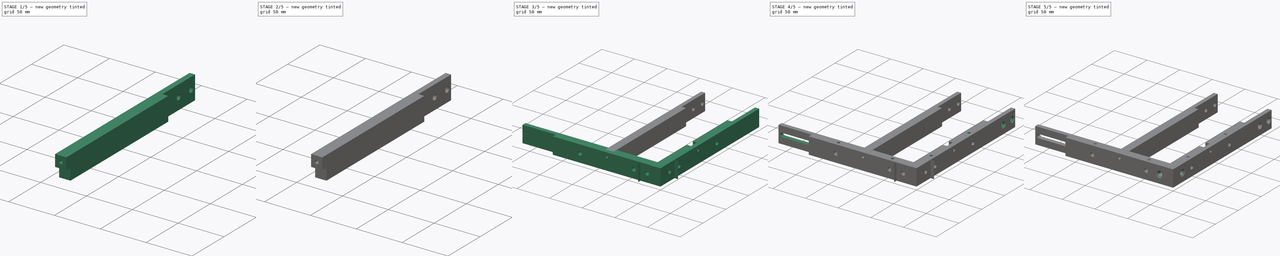
[diagram: build sequence overview — one tinted view per stage of 5, left to right]
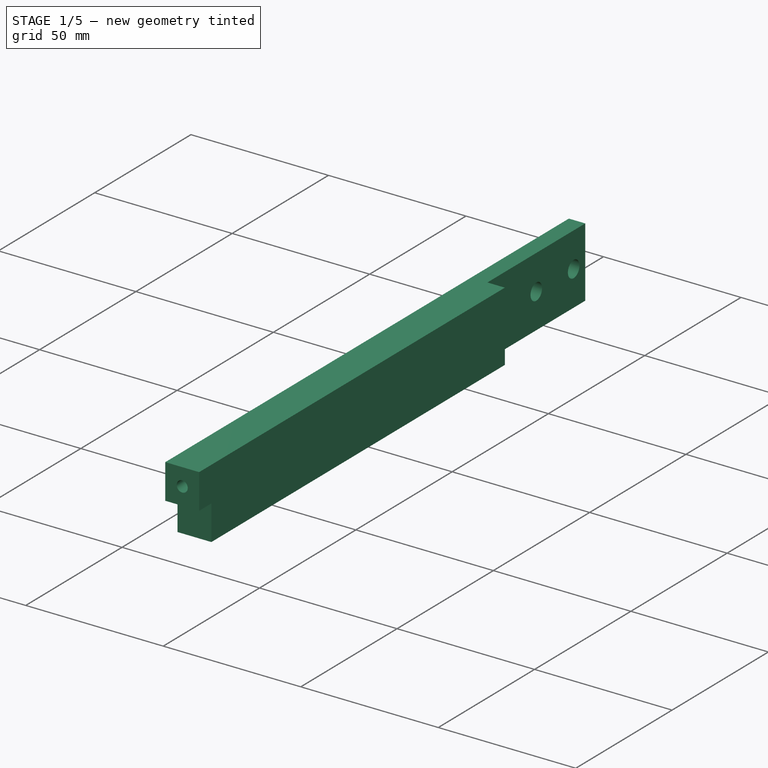
[diagram: stage 1 of 5 — iso view after this stage's code; geometry added in this stage tinted green]
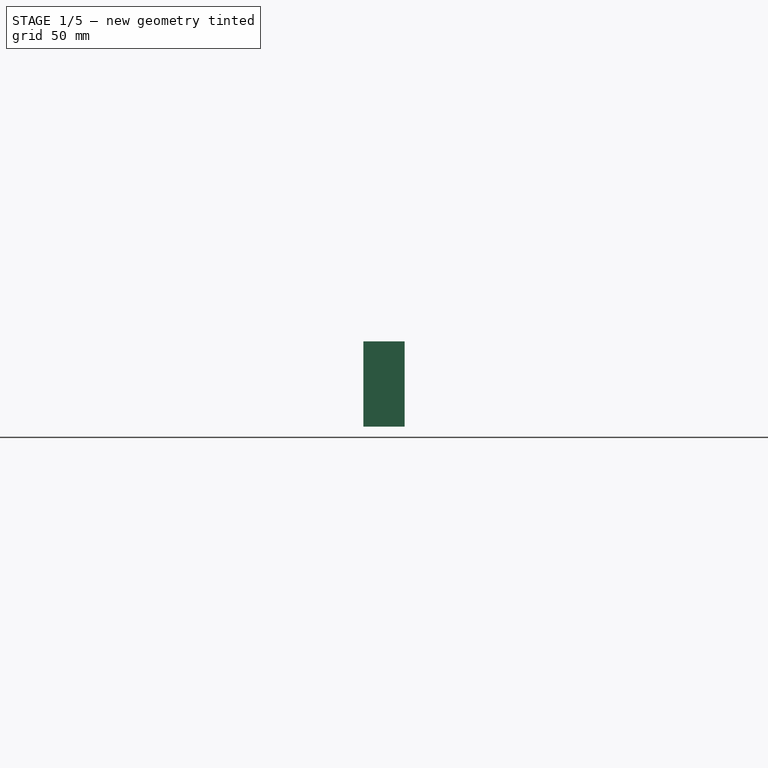
[diagram: stage 1 of 5 — front view after this stage's code; geometry added in this stage tinted green]
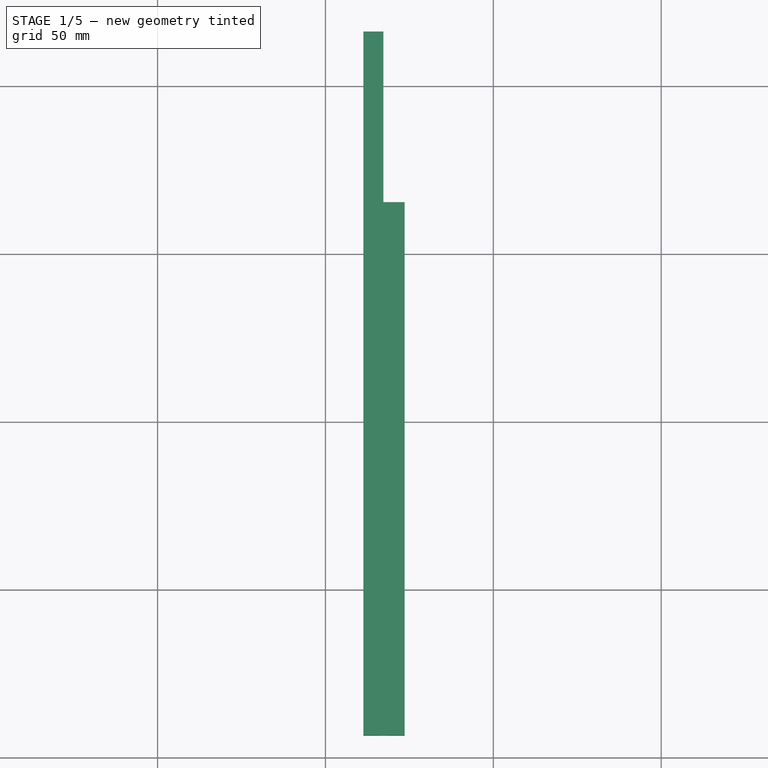
[diagram: stage 1 of 5 — top view after this stage's code; geometry added in this stage tinted green]
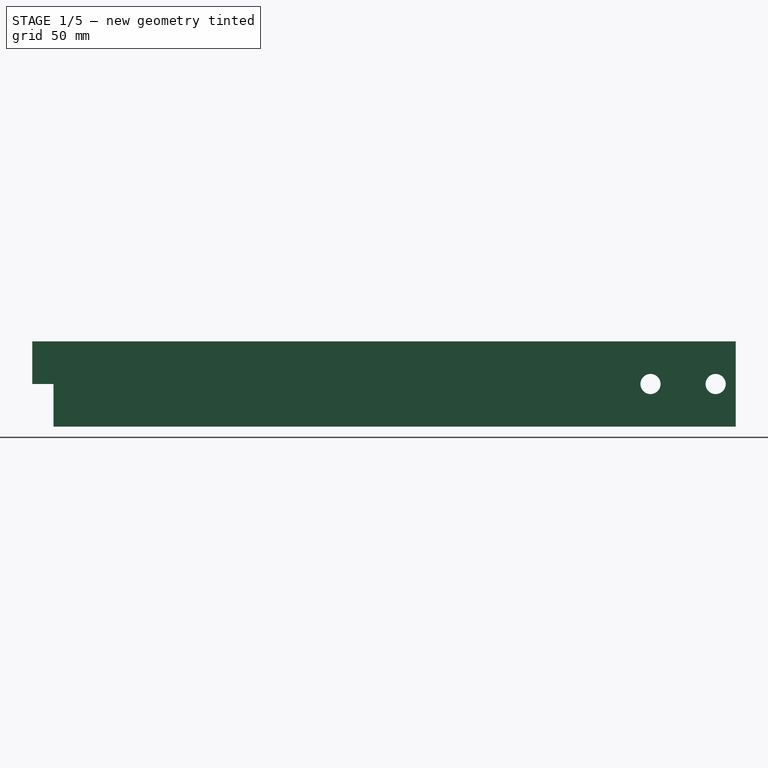
[diagram: stage 1 of 5 — right view after this stage's code; geometry added in this stage tinted green]
FCSTD DOCUMENT  (FreeCAD 0.21R33771 (Git))
Label: Battery_Shelf_Parts
License: All rights reserved
LicenseURL: http://en.wikipedia.org/wiki/All_rights_reserved
objects: Sketcher::SketchObject×19, PartDesign::Pocket×15, Part::FeaturePython×5, PartDesign::Pad×4, PartDesign::Chamfer×4, PartDesign::Body×4, App::Part×3, Spreadsheet::Sheet×1, App::DocumentObjectGroup×1
note: 74 computed .brp shape members not serialized (recipe doc carries the construction recipe); baked Part::Feature solids carry a one-line shape summary decoded from their .brp

FEATURE [PartDesign::Body] Body002  label="Shelf_Runner_Long_Pocket_Body"
  Group = -> [Sketch009,Pad002,Sketch010,Pocket007,Sketch011,Pocket008,Sketch012,Pocket009,Sketch013,Pocket010]
  Origin = -> Origin004
  Tip = -> Pocket010
FEATURE [App::Part] Part001  label="Shelf_Runner_Long_Pocket_Part"
  Group = -> [Body002]
  Origin = -> Origin003
FEATURE [Sketcher::SketchObject] Sketch014
  FullyConstrained = true
  MapMode = 5
  Support = -> [XY_Plane006]
  expr: Constraints[10] = <<p>>.thickness / 2
  expr: Constraints[11] = <<p>>.batt_length / 4 - <<p>>.thickness / 2 + <<p>>.clearance
  expr: Constraints[8] = <<p>>.thickness - <<p>>.clearance * 2
  expr: Constraints[9] = <<p>>.batt_length / 2 + <<p>>.overlap / 2 - <<p>>.thickness / 2
  sketch-geometry (4):
    g0: LineSegment StartX=-88.7 StartY=6.35 StartZ=0 EndX=-76.4 EndY=6.35 EndZ=0
    g1: LineSegment StartX=-76.4 StartY=6.35 StartZ=0 EndX=-76.4 EndY=215.9 EndZ=0
    g2: LineSegment StartX=-76.4 StartY=215.9 StartZ=0 EndX=-88.7 EndY=215.9 EndZ=0
    g3: LineSegment StartX=-88.7 StartY=215.9 StartZ=0 EndX=-88.7 EndY=6.35 EndZ=0
  constraints (12):
    c: Coincident(g0,g1)
    c: Coincident(g1,g2)
    c: Coincident(g2,g3)
    c: Coincident(g3,g0)
    c: Horizontal(g0)
    c: Horizontal(g2)
    c: Vertical(g1)
    c: Vertical(g3)
    c: DistanceX(g0,g0) = 12.3
    c: DistanceY(g1,g1) = 209.55
    c: DistanceY(g-1,g0) = 6.35
    c: DistanceX(g0,g-1) = 76.4
FEATURE [PartDesign::Pad] Pad003  label="Shelf_Runner_Pad001"
  Direction = (0,0,1)
  Length = 25.4
  Length2 = 10
  Profile = -> Sketch014
  ReferenceAxis = -> Sketch014 [N_Axis]
  Type = 0
  expr: Length = <<p>>.height
FEATURE [Sketcher::SketchObject] Sketch015
  FullyConstrained = true
  MapMode = 5
  Placement = pos=(0,0,0) rot=(1,0,0;3.14159rad)
  Support = -> [Pad003]
  expr: Constraints[10] = <<p>>.thickness / 2
  expr: Constraints[11] = <<p>>.batt_length / 4 - <<p>>.thickness / 2 + <<p>>.clearance
  expr: Constraints[8] = <<p>>.thickness - <<p>>.clearance * 2
  expr: Constraints[9] = <<p>>.thickness / 2
  sketch-geometry (4):
    g0: LineSegment StartX=-88.7 StartY=-6.35 StartZ=0 EndX=-76.4 EndY=-6.35 EndZ=0
    g1: LineSegment StartX=-76.4 StartY=-6.35 StartZ=0 EndX=-76.4 EndY=-12.7 EndZ=0
    g2: LineSegment StartX=-76.4 StartY=-12.7 StartZ=0 EndX=-88.7 EndY=-12.7 EndZ=0
    g3: LineSegment StartX=-88.7 StartY=-12.7 StartZ=0 EndX=-88.7 EndY=-6.35 EndZ=0
  constraints (12):
    c: Coincident(g0,g1)
    c: Coincident(g1,g2)
    c: Coincident(g2,g3)
    c: Coincident(g3,g0)
    c: Horizontal(g0)
    c: Horizontal(g2)
    c: Vertical(g1)
    c: Vertical(g3)
    c: DistanceX(g0,g0) = 12.3
    c: DistanceY(g1,g1) = 6.35
    c: DistanceY(g0,g-1) = 6.35
    c: DistanceX(g0,g-1) = 76.4
FEATURE [PartDesign::Pocket] Pocket011  label="LowerPocketCutout001"
  BaseFeature = -> Pad003
  Direction = (0,0,1)
  Length = 12.7
  Length2 = 5
  Profile = -> Sketch015
  ReferenceAxis = -> Sketch015 [N_Axis]
  Type = 0
  expr: Length = <<p>>.height / 2
FEATURE [Sketcher::SketchObject] Sketch016
  FullyConstrained = true
  MapMode = 5
  Placement = pos=(0,6.35,0) rot=(1,0,0;1.5708rad)
  Support = -> [Pocket011]
  expr: Constraints[0] = 4
  expr: Constraints[1] = <<p>>.height - <<p>>.height / 4
  expr: Constraints[2] = <<p>>.batt_length / 4
  sketch-geometry (1):
    g0: Circle CenterX=-82.55 CenterY=19.05 CenterZ=0 NormalX=0 NormalY=0 NormalZ=1 AngleXU=0 Radius=2
  constraints (3):
    c: Diameter(g0) = 4
    c: DistanceY(g-1,g0) = 19.05
    c: DistanceX(g0,g-1) = 82.55
FEATURE [PartDesign::Pocket] Pocket012
  BaseFeature = -> Pocket011
  Direction = (0,1,-2e-16)
  Length = 10
  Length2 = 5
  Profile = -> Sketch016
  ReferenceAxis = -> Sketch016 [N_Axis]
  Type = 0
FEATURE [Sketcher::SketchObject] Sketch017
  FullyConstrained = true
  MapMode = 5
  Placement = pos=(0,0,25.4) rot=(0,0,1;0rad)
  Support = -> [Pocket012]
  expr: Constraints[10] = <<p>>.batt_length / 2 + <<p>>.overlap / 2 - <<p>>.thickness / 2 + <<p>>.thickness / 2
  expr: Constraints[11] = <<p>>.batt_length / 4 - <<p>>.thickness / 2 + <<p>>.clearance
  expr: Constraints[8] = <<p>>.thickness / 2
  expr: Constraints[9] = <<p>>.overlap / 2
  sketch-geometry (4):
    g0: LineSegment StartX=-76.4 StartY=215.9 StartZ=0 EndX=-82.75 EndY=215.9 EndZ=0
    g1: LineSegment StartX=-82.75 StartY=215.9 StartZ=0 EndX=-82.75 EndY=165.1 EndZ=0
    g2: LineSegment StartX=-82.75 StartY=165.1 StartZ=0 EndX=-76.4 EndY=165.1 EndZ=0
    g3: LineSegment StartX=-76.4 StartY=165.1 StartZ=0 EndX=-76.4 EndY=215.9 EndZ=0
  constraints (12):
    c: Coincident(g0,g1)
    c: Coincident(g1,g2)
    c: Coincident(g2,g3)
    c: Coincident(g3,g0)
    c: Horizontal(g0)
    c: Horizontal(g2)
    c: Vertical(g1)
    c: Vertical(g3)
    c: DistanceX(g0,g0) = 6.35
    c: DistanceY(g3,g3) = 50.8
    c: DistanceY(g-1,g0) = 215.9
    c: DistanceX(g2,g-1) = 76.4
FEATURE [PartDesign::Pocket] Pocket013  label="Edge_Pocket001"
  BaseFeature = -> Pocket012
  Direction = (0,0,-1)
  Length = 5
  Length2 = 5
  Profile = -> Sketch017
  ReferenceAxis = -> Sketch017 [N_Axis]
  Type = 1
FEATURE [Sketcher::SketchObject] Sketch018
  FullyConstrained = true
  MapMode = 5
  Placement = pos=(-82.75,0,0) rot=(0.57735,0.57735,0.57735;2.0944rad)
  Support = -> [Pocket013]
  expr: Constraints[1] = <<p>>.hole_d
  expr: Constraints[3] = <<p>>.height / 2
  expr: Constraints[4] = (<<p>>.overlap / 2 - <<p>>.hole_d * 2) / 2
  expr: Constraints[5] = <<p>>.batt_length / 2 + <<p>>.overlap / 2 - <<p>>.hole_d
  sketch-geometry (2):
    g0: Circle CenterX=190.5 CenterY=12.7 CenterZ=0 NormalX=0 NormalY=0 NormalZ=1 AngleXU=0 Radius=3
    g1: Circle CenterX=209.9 CenterY=12.7 CenterZ=0 NormalX=0 NormalY=0 NormalZ=1 AngleXU=0 Radius=3
  constraints (6):
    c: Equal(g0,g1)
    c: Diameter(g0) = 6
    c: DistanceY(g0,g1) = 0
    c: DistanceY(g-1,g1) = 12.7
    c: DistanceX(g0,g1) = 19.4
    c: DistanceX(g-1,g1) = 209.9
FEATURE [PartDesign::Pocket] Pocket014  label="Short_Pocket001"
  BaseFeature = -> Pocket013
  Direction = (-1,0,0)
  Length = 5
  Length2 = 5
  Profile = -> Sketch018
  ReferenceAxis = -> Sketch018 [N_Axis]
  Type = 1
FEATURE [PartDesign::Chamfer] Chamfer003  label="Short_Pocket_Chamfer001"
  Angle = 45
  Base = -> Pocket014 [Edge14,Edge13]
  BaseFeature = -> Pocket014
  ChamferType = 0
  FlipDirection = false
  Size = 1.5
  Size2 = 1
  SupportTransform = false
  UseAllEdges = false
FEATURE [PartDesign::Body] Body003  label="Shelf_Runner_Short_Pocket_Body"
  Group = -> [Sketch014,Pad003,Sketch015,Pocket011,Sketch016,Pocket012,Sketch017,Pocket013,Sketch018,Pocket014,Chamfer003]
  Origin = -> Origin006
  Tip = -> Chamfer003
FEATURE [App::Part] Part002  label="Shelf_Runner_Short_Pocket_Part"
  Group = -> [Body003]
  Origin = -> Origin005
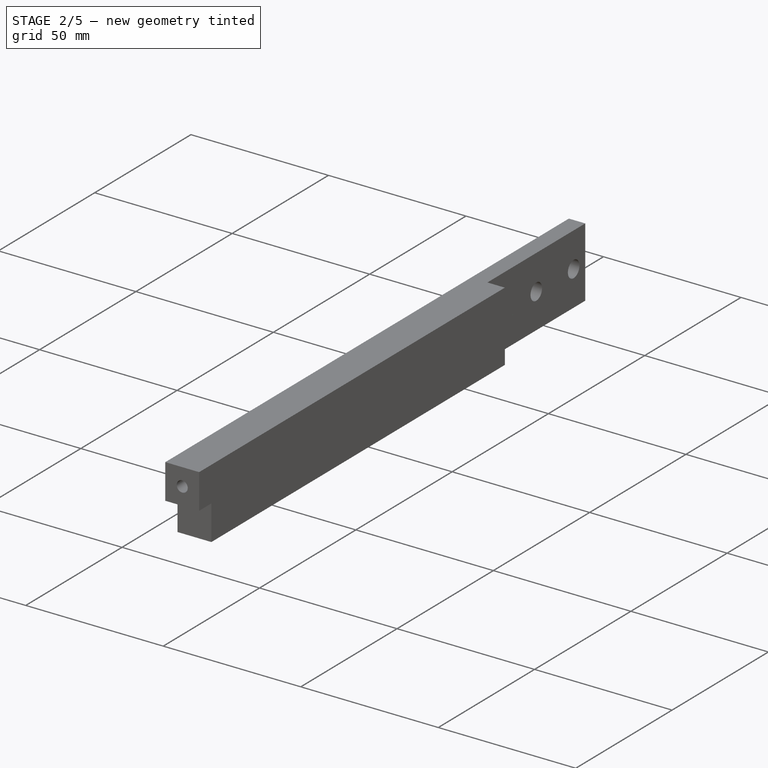
[diagram: stage 2 of 5 — iso view after this stage's code; geometry added in this stage tinted green]
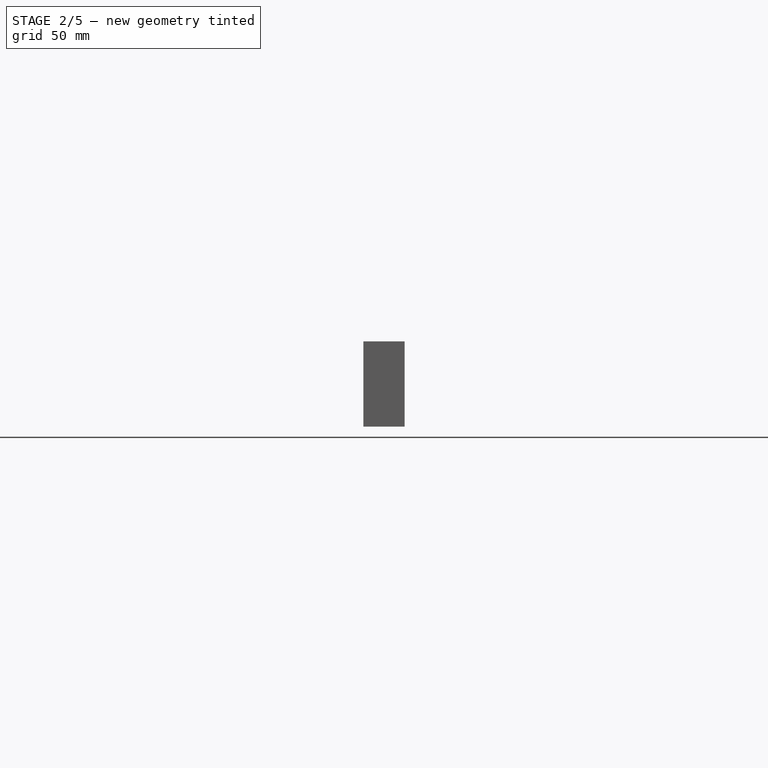
[diagram: stage 2 of 5 — front view after this stage's code; geometry added in this stage tinted green]
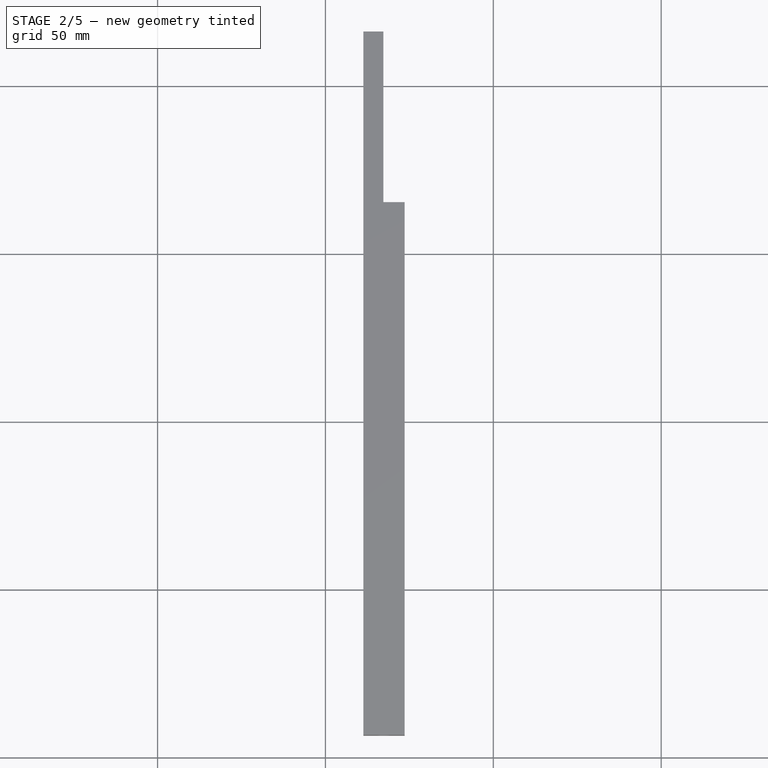
[diagram: stage 2 of 5 — top view after this stage's code; geometry added in this stage tinted green]
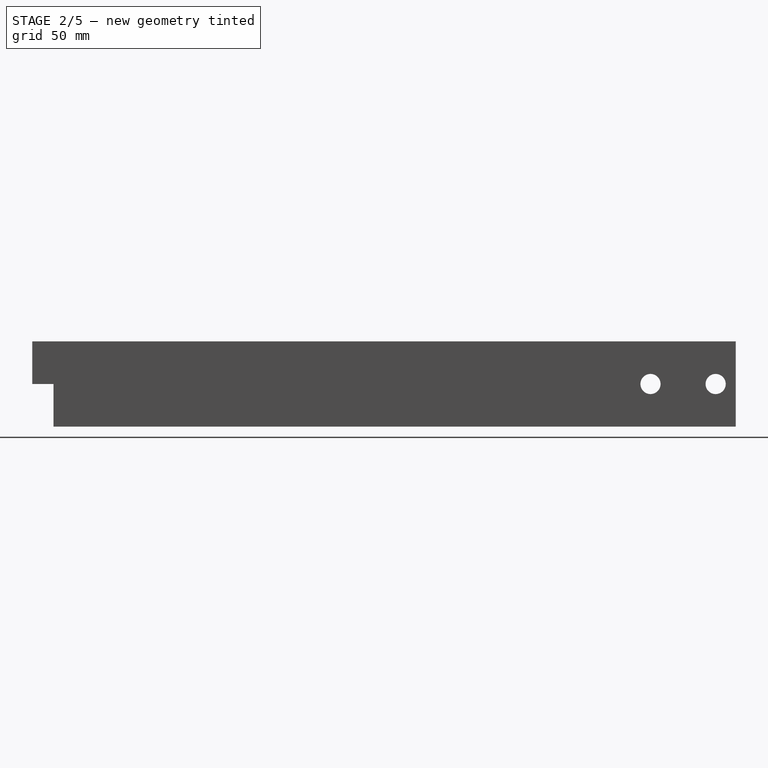
[diagram: stage 2 of 5 — right view after this stage's code; geometry added in this stage tinted green]
FEATURE [App::DocumentObjectGroup] GrExplode_Slice  label="Exploded Slice"
  Group = -> [Slice_child0,Slice_child1,Slice_child2,Slice_child3]
FEATURE [Sketcher::SketchObject] Sketch009
  FullyConstrained = true
  MapMode = 5
  Support = -> [XY_Plane004]
  expr: Constraints[10] = <<p>>.thickness / 2
  expr: Constraints[11] = <<p>>.batt_length / 4 - <<p>>.thickness / 2 + <<p>>.clearance
  expr: Constraints[8] = <<p>>.thickness - <<p>>.clearance * 2
  expr: Constraints[9] = <<p>>.batt_length / 2 + <<p>>.overlap / 2 - <<p>>.thickness / 2
  sketch-geometry (4):
    g0: LineSegment StartX=-88.7 StartY=6.35 StartZ=0 EndX=-76.4 EndY=6.35 EndZ=0
    g1: LineSegment StartX=-76.4 StartY=6.35 StartZ=0 EndX=-76.4 EndY=215.9 EndZ=0
    g2: LineSegment StartX=-76.4 StartY=215.9 StartZ=0 EndX=-88.7 EndY=215.9 EndZ=0
    g3: LineSegment StartX=-88.7 StartY=215.9 StartZ=0 EndX=-88.7 EndY=6.35 EndZ=0
  constraints (12):
    c: Coincident(g0,g1)
    c: Coincident(g1,g2)
    c: Coincident(g2,g3)
    c: Coincident(g3,g0)
    c: Horizontal(g0)
    c: Horizontal(g2)
    c: Vertical(g1)
    c: Vertical(g3)
    c: DistanceX(g0,g0) = 12.3
    c: DistanceY(g1,g1) = 209.55
    c: DistanceY(g-1,g0) = 6.35
    c: DistanceX(g0,g-1) = 76.4
FEATURE [PartDesign::Pad] Pad002  label="Shelf_Runner_Pad"
  Direction = (0,0,1)
  Length = 25.4
  Length2 = 10
  Profile = -> Sketch009
  ReferenceAxis = -> Sketch009 [N_Axis]
  Type = 0
  expr: Length = <<p>>.height
FEATURE [Sketcher::SketchObject] Sketch010
  FullyConstrained = true
  MapMode = 5
  Placement = pos=(0,0,0) rot=(1,0,0;3.14159rad)
  Support = -> [Pad002]
  expr: Constraints[10] = <<p>>.thickness / 2
  expr: Constraints[11] = <<p>>.batt_length / 4 - <<p>>.thickness / 2 + <<p>>.clearance
  expr: Constraints[8] = <<p>>.thickness - <<p>>.clearance * 2
  expr: Constraints[9] = <<p>>.thickness / 2
  sketch-geometry (4):
    g0: LineSegment StartX=-88.7 StartY=-6.35 StartZ=0 EndX=-76.4 EndY=-6.35 EndZ=0
    g1: LineSegment StartX=-76.4 StartY=-6.35 StartZ=0 EndX=-76.4 EndY=-12.7 EndZ=0
    g2: LineSegment StartX=-76.4 StartY=-12.7 StartZ=0 EndX=-88.7 EndY=-12.7 EndZ=0
    g3: LineSegment StartX=-88.7 StartY=-12.7 StartZ=0 EndX=-88.7 EndY=-6.35 EndZ=0
  constraints (12):
    c: Coincident(g0,g1)
    c: Coincident(g1,g2)
    c: Coincident(g2,g3)
    c: Coincident(g3,g0)
    c: Horizontal(g0)
    c: Horizontal(g2)
    c: Vertical(g1)
    c: Vertical(g3)
    c: DistanceX(g0,g0) = 12.3
    c: DistanceY(g1,g1) = 6.35
    c: DistanceY(g0,g-1) = 6.35
    c: DistanceX(g0,g-1) = 76.4
FEATURE [PartDesign::Pocket] Pocket007  label="LowerPocketCutout"
  BaseFeature = -> Pad002
  Direction = (0,0,1)
  Length = 12.7
  Length2 = 5
  Profile = -> Sketch010
  ReferenceAxis = -> Sketch010 [N_Axis]
  Type = 0
  expr: Length = <<p>>.height / 2
FEATURE [Sketcher::SketchObject] Sketch011
  FullyConstrained = true
  MapMode = 5
  Placement = pos=(0,6.35,0) rot=(1,0,0;1.5708rad)
  Support = -> [Pocket007]
  expr: Constraints[0] = 4
  expr: Constraints[1] = <<p>>.height - <<p>>.height / 4
  expr: Constraints[2] = <<p>>.batt_length / 4
  sketch-geometry (1):
    g0: Circle CenterX=-82.55 CenterY=19.05 CenterZ=0 NormalX=0 NormalY=0 NormalZ=1 AngleXU=0 Radius=2
  constraints (3):
    c: Diameter(g0) = 4
    c: DistanceY(g-1,g0) = 19.05
    c: DistanceX(g0,g-1) = 82.55
FEATURE [PartDesign::Pocket] Pocket008
  BaseFeature = -> Pocket007
  Direction = (0,1,-2e-16)
  Length = 10
  Length2 = 5
  Profile = -> Sketch011
  ReferenceAxis = -> Sketch011 [N_Axis]
  Type = 0
FEATURE [Sketcher::SketchObject] Sketch012
  FullyConstrained = true
  MapMode = 5
  Placement = pos=(0,0,25.4) rot=(0,0,1;0rad)
  Support = -> [Pocket008]
  expr: Constraints[10] = <<p>>.batt_length / 2 + <<p>>.overlap / 2 - <<p>>.thickness / 2 + <<p>>.thickness / 2
  expr: Constraints[11] = <<p>>.batt_length / 4 - <<p>>.thickness / 2 + <<p>>.clearance
  expr: Constraints[8] = <<p>>.thickness / 2
  expr: Constraints[9] = <<p>>.overlap / 2
  sketch-geometry (4):
    g0: LineSegment StartX=-76.4 StartY=215.9 StartZ=0 EndX=-82.75 EndY=215.9 EndZ=0
    g1: LineSegment StartX=-82.75 StartY=215.9 StartZ=0 EndX=-82.75 EndY=165.1 EndZ=0
    g2: LineSegment StartX=-82.75 StartY=165.1 StartZ=0 EndX=-76.4 EndY=165.1 EndZ=0
    g3: LineSegment StartX=-76.4 StartY=165.1 StartZ=0 EndX=-76.4 EndY=215.9 EndZ=0
  constraints (12):
    c: Coincident(g0,g1)
    c: Coincident(g1,g2)
    c: Coincident(g2,g3)
    c: Coincident(g3,g0)
    c: Horizontal(g0)
    c: Horizontal(g2)
    c: Vertical(g1)
    c: Vertical(g3)
    c: DistanceX(g0,g0) = 6.35
    c: DistanceY(g3,g3) = 50.8
    c: DistanceY(g-1,g0) = 215.9
    c: DistanceX(g2,g-1) = 76.4
FEATURE [PartDesign::Pocket] Pocket009  label="Edge_Pocket"
  BaseFeature = -> Pocket008
  Direction = (0,0,-1)
  Length = 5
  Length2 = 5
  Profile = -> Sketch012
  ReferenceAxis = -> Sketch012 [N_Axis]
  Type = 1
FEATURE [Sketcher::SketchObject] Sketch013
  FullyConstrained = true
  MapMode = 5
  Placement = pos=(-82.75,0,0) rot=(0.57735,0.57735,0.57735;2.0944rad)
  Support = -> [Pocket009]
  expr: Constraints[11] = <<p>>.height / 2
  expr: Constraints[12] = <<p>>.overlap / 2 - <<p>>.hole_d * 2
  expr: Constraints[13] = <<p>>.batt_length / 2 + <<p>>.overlap / 2 - <<p>>.hole_d
  expr: Constraints[6] = <<p>>.hole_d
  sketch-geometry (4):
    g0: LineSegment StartX=171.1 StartY=15.7 StartZ=0 EndX=209.9 EndY=15.7 EndZ=0
    g1: LineSegment StartX=209.9 StartY=9.7 StartZ=0 EndX=171.1 EndY=9.7 EndZ=0
    g2: ArcOfCircle CenterX=171.1 CenterY=12.7 CenterZ=0 NormalX=0 NormalY=0 NormalZ=1 AngleXU=0 Radius=3 StartAngle=1.5708 EndAngle=4.71239
    g3: ArcOfCircle CenterX=209.9 CenterY=12.7 CenterZ=0 NormalX=0 NormalY=0 NormalZ=1 AngleXU=0 Radius=3 StartAngle=4.71239 EndAngle=7.85398
  constraints (14):
    c: Horizontal(g0)
    c: Horizontal(g1)
    c: Coincident(g2,g0)
    c: Coincident(g2,g1)
    c: Coincident(g3,g0)
    c: DistanceX(g0,g1) = 0
    c: Diameter(g3) = 6
    c: DistanceX(g0,g3) = 0
    c: DistanceX(g0,g2) = 0
    c: DistanceX(g1,g2) = 0
    c: Coincident(g1,g3)
    c: DistanceY(g-1,g3) = 12.7
    c: DistanceX(g2,g3) = 38.8
    c: DistanceX(g-1,g3) = 209.9
FEATURE [PartDesign::Pocket] Pocket010  label="Long_Pocket001"
  BaseFeature = -> Pocket009
  Direction = (-1,0,0)
  Length = 5
  Length2 = 5
  Profile = -> Sketch013
  ReferenceAxis = -> Sketch013 [N_Axis]
  Type = 1
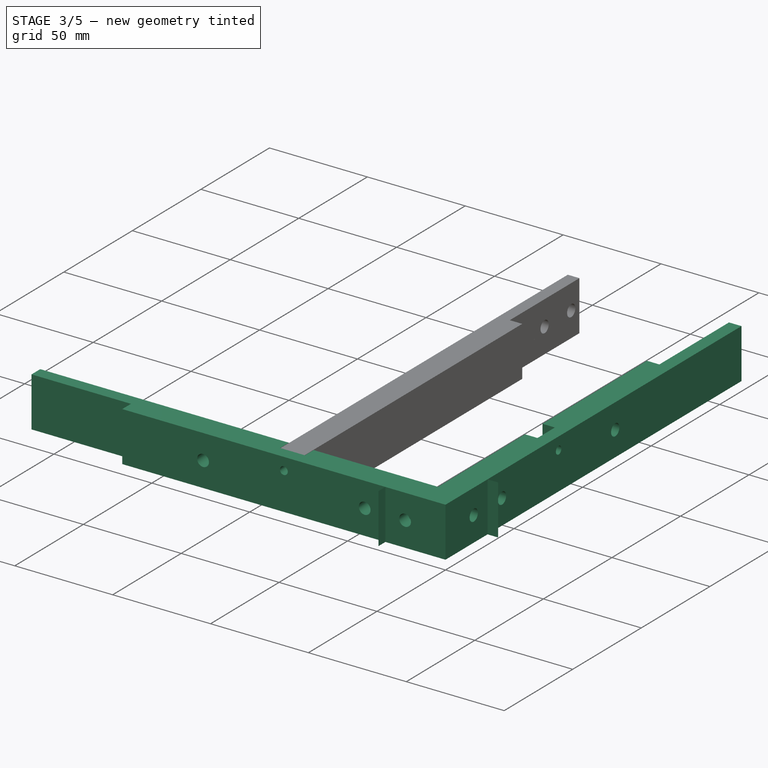
[diagram: stage 3 of 5 — iso view after this stage's code; geometry added in this stage tinted green]
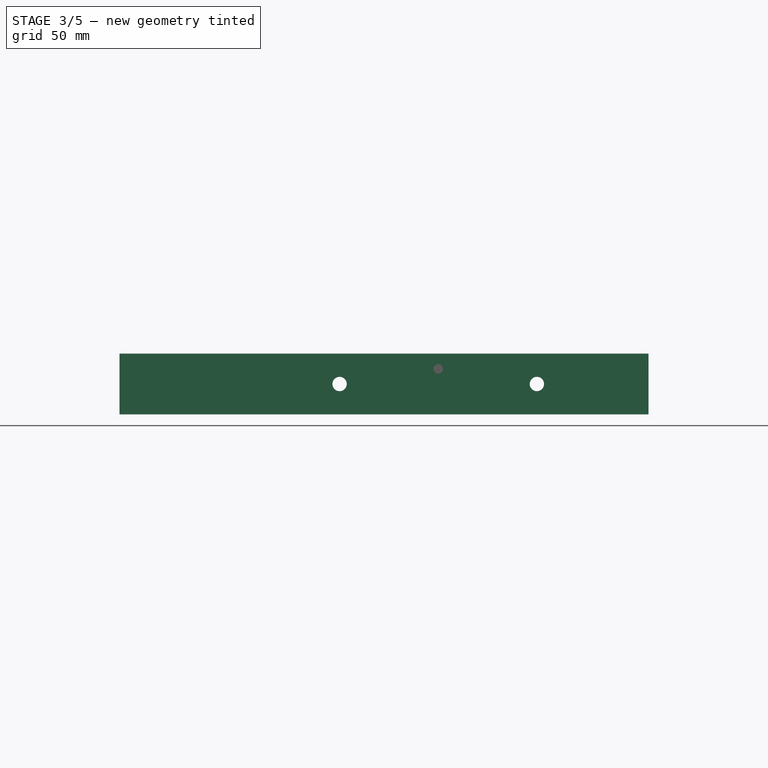
[diagram: stage 3 of 5 — front view after this stage's code; geometry added in this stage tinted green]
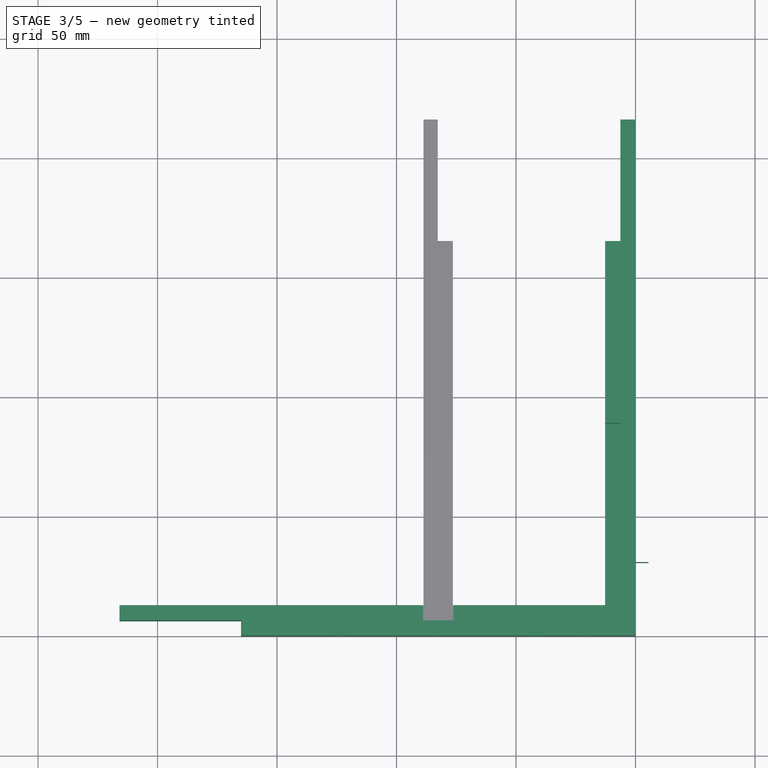
[diagram: stage 3 of 5 — top view after this stage's code; geometry added in this stage tinted green]
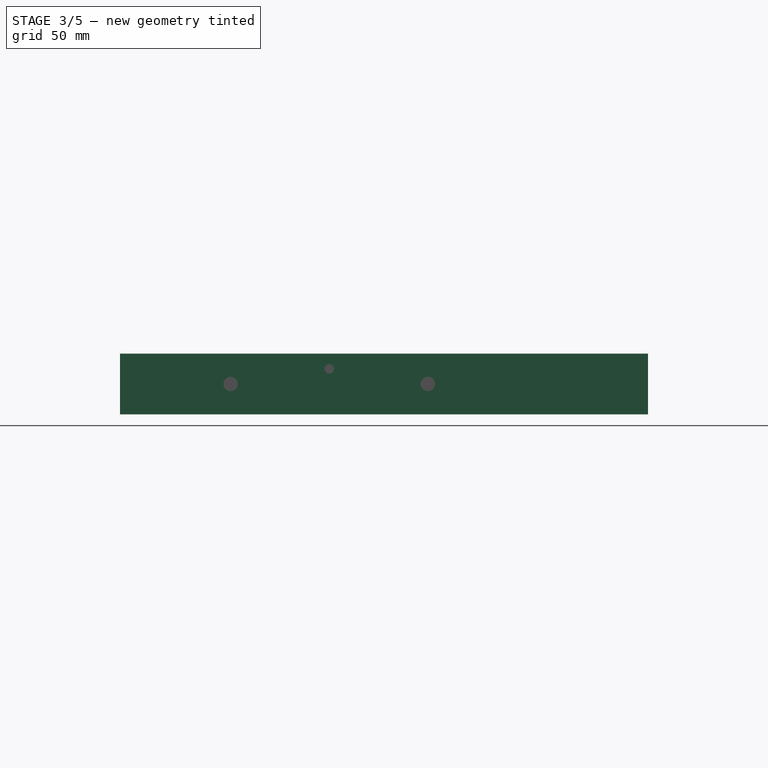
[diagram: stage 3 of 5 — right view after this stage's code; geometry added in this stage tinted green]
FEATURE [Spreadsheet::Sheet] Spreadsheet  label="p"
  cells = A1='batt_length; B1(batt_length)=330.2; A2='closet_width; B2(closet_width)=352.425; A3='overlap; B3(overlap)=101.6; A4='height; B4(height)=25.4; A5='thickness; B5(thickness)=12.7; A6='hole_d; B6(hole_d)=6; A8='clearance; B8(clearance)=0.2
FEATURE [Sketcher::SketchObject] Sketch
  FullyConstrained = true
  MapMode = 5
  Support = -> [XY_Plane001]
  expr: Constraints[13] = <<p>>.batt_length / 2 + <<p>>.overlap / 2
  expr: Constraints[14] = <<p>>.batt_length / 2 + <<p>>.overlap / 2
  expr: Constraints[15] = <<p>>.thickness
  expr: Constraints[16] = <<p>>.thickness
  sketch-geometry (6):
    g0: LineSegment StartX=0 StartY=0 StartZ=0 EndX=-215.9 EndY=0 EndZ=0
    g1: LineSegment StartX=-215.9 StartY=0 StartZ=0 EndX=-215.9 EndY=12.7 EndZ=0
    g2: LineSegment StartX=-215.9 StartY=12.7 StartZ=0 EndX=-12.7 EndY=12.7 EndZ=0
    g3: LineSegment StartX=-12.7 StartY=12.7 StartZ=0 EndX=-12.7 EndY=215.9 EndZ=0
    g4: LineSegment StartX=-12.7 StartY=215.9 StartZ=0 EndX=0 EndY=215.9 EndZ=0
    g5: LineSegment StartX=0 StartY=215.9 StartZ=0 EndX=0 EndY=0 EndZ=0
  constraints (17):
    c: Coincident(g-1,g0)
    c: PointOnObject(g0,g-1)
    c: Coincident(g0,g1)
    c: Vertical(g1)
    c: Coincident(g1,g2)
    c: Horizontal(g2)
    c: Coincident(g2,g3)
    c: Vertical(g3)
    c: Coincident(g3,g4)
    c: PointOnObject(g4,g-2)
    c: Horizontal(g4)
    c: Coincident(g4,g5)
    c: Coincident(g5,g0)
    c: DistanceY(g5,g5) = 215.9
    c: DistanceX(g0,g0) = 215.9
    c: DistanceX(g4,g4) = 12.7
    c: DistanceY(g1,g1) = 12.7
FEATURE [PartDesign::Pad] Pad  label="Shelf_Bracket_Body_Pad"
  Direction = (0,0,1)
  Length = 25.4
  Length2 = 10
  Profile = -> Sketch
  ReferenceAxis = -> Sketch [N_Axis]
  Type = 0
  expr: Length = <<p>>.height
FEATURE [Sketcher::SketchObject] Sketch001
  FullyConstrained = true
  MapMode = 5
  Placement = pos=(0,0,25.4) rot=(0,0,1;0rad)
  Support = -> [Pad]
  expr: Constraints[17] = <<p>>.thickness / 2
  expr: Constraints[18] = <<p>>.overlap / 2
  expr: Constraints[19] = <<p>>.batt_length / 2
  expr: Constraints[20] = <<p>>.thickness / 2
  expr: Constraints[21] = <<p>>.overlap / 2
  expr: Constraints[22] = <<p>>.batt_length / 2
  expr: Constraints[23] = <<p>>.thickness / 2
  sketch-geometry (8):
    g0: LineSegment StartX=-165.1 StartY=0 StartZ=0 EndX=-215.9 EndY=0 EndZ=0
    g1: LineSegment StartX=-215.9 StartY=0 StartZ=0 EndX=-215.9 EndY=6.35 EndZ=0
    g2: LineSegment StartX=-215.9 StartY=6.35 StartZ=0 EndX=-165.1 EndY=6.35 EndZ=0
    g3: LineSegment StartX=-165.1 StartY=6.35 StartZ=0 EndX=-165.1 EndY=0 EndZ=0
    g4: LineSegment StartX=-12.7 StartY=215.9 StartZ=0 EndX=-6.35 EndY=215.9 EndZ=0
    g5: LineSegment StartX=-6.35 StartY=215.9 StartZ=0 EndX=-6.35 EndY=165.1 EndZ=0
    g6: LineSegment StartX=-6.35 StartY=165.1 StartZ=0 EndX=-12.7 EndY=165.1 EndZ=0
    g7: LineSegment StartX=-12.7 StartY=165.1 StartZ=0 EndX=-12.7 EndY=215.9 EndZ=0
  constraints (24):
    c: Coincident(g0,g1)
    c: Coincident(g1,g2)
    c: Coincident(g2,g3)
    c: Coincident(g3,g0)
    c: Horizontal(g0)
    c: Horizontal(g2)
    c: Vertical(g1)
    c: Vertical(g3)
    c: PointOnObject(g0,g-1)
    c: Coincident(g4,g5)
    c: Coincident(g5,g6)
    c: Coincident(g6,g7)
    c: Coincident(g7,g4)
    c: Horizontal(g4)
    c: Horizontal(g6)
    c: Vertical(g5)
    c: Vertical(g7)
    c: DistanceX(g4,g4) = 6.35
    c: DistanceX(g2,g2) = 50.8
    c: DistanceX(g0,g-1) = 165.1
    c: DistanceY(g1,g1) = 6.35
    c: DistanceY(g5,g5) = 50.8
    c: DistanceY(g-1,g5) = 165.1
    c: DistanceX(g5,g-1) = 6.35
FEATURE [PartDesign::Pocket] Pocket  label="Edge_Pockets"
  BaseFeature = -> Pad
  Direction = (0,0,-1)
  Length = 5
  Length2 = 5
  Profile = -> Sketch001
  ReferenceAxis = -> Sketch001 [N_Axis]
  Type = 1
FEATURE [Sketcher::SketchObject] Sketch002
  FullyConstrained = true
  MapMode = 5
  Placement = pos=(0,0,25.4) rot=(0,0,1;0rad)
  Support = -> [Pocket]
  expr: Constraints[16] = <<p>>.thickness
  expr: Constraints[17] = <<p>>.batt_length / 4 - <<p>>.thickness / 2
  expr: Constraints[18] = <<p>>.thickness / 2
  expr: Constraints[19] = <<p>>.thickness / 2
  expr: Constraints[20] = <<p>>.thickness / 2
  expr: Constraints[21] = <<p>>.thickness / 2
  expr: Constraints[22] = <<p>>.batt_length / 4 - <<p>>.thickness / 2
  expr: Constraints[23] = <<p>>.thickness
  sketch-geometry (8):
    g0: LineSegment StartX=-88.9 StartY=12.7 StartZ=0 EndX=-76.2 EndY=12.7 EndZ=0
    g1: LineSegment StartX=-76.2 StartY=12.7 StartZ=0 EndX=-76.2 EndY=6.35 EndZ=0
    g2: LineSegment StartX=-76.2 StartY=6.35 StartZ=0 EndX=-88.9 EndY=6.35 EndZ=0
    g3: LineSegment StartX=-88.9 StartY=6.35 StartZ=0 EndX=-88.9 EndY=12.7 EndZ=0
    g4: LineSegment StartX=-12.7 StartY=88.9 StartZ=0 EndX=-6.35 EndY=88.9 EndZ=0
    g5: LineSegment StartX=-6.35 StartY=88.9 StartZ=0 EndX=-6.35 EndY=76.2 EndZ=0
    g6: LineSegment StartX=-6.35 StartY=76.2 StartZ=0 EndX=-12.7 EndY=76.2 EndZ=0
    g7: LineSegment StartX=-12.7 StartY=76.2 StartZ=0 EndX=-12.7 EndY=88.9 EndZ=0
  constraints (24):
    c: Coincident(g0,g1)
    c: Coincident(g1,g2)
    c: Coincident(g2,g3)
    c: Coincident(g3,g0)
    c: Horizontal(g0)
    c: Horizontal(g2)
    c: Vertical(g1)
    c: Vertical(g3)
    c: Coincident(g4,g5)
    c: Coincident(g5,g6)
    c: Coincident(g6,g7)
    c: Coincident(g7,g4)
    c: Horizontal(g4)
    c: Horizontal(g6)
    c: Vertical(g5)
    c: Vertical(g7)
    c: DistanceY(g5,g5) = 12.7
    c: DistanceY(g-1,g5) = 76.2
    c: DistanceY(g1,g1) = 6.35
    c: DistanceY(g-1,g1) = 6.35
    c: DistanceX(g6,g6) = 6.35
    c: DistanceX(g5,g-1) = 6.35
    c: DistanceX(g1,g-1) = 76.2
    c: DistanceX(g2,g2) = 12.7
FEATURE [PartDesign::Pocket] Pocket001  label="Rack_Pockets"
  BaseFeature = -> Pocket
  Direction = (0,0,-1)
  Length = 12.7
  Length2 = 5
  Profile = -> Sketch002
  ReferenceAxis = -> Sketch002 [N_Axis]
  Type = 0
  expr: Length = <<p>>.height / 2
FEATURE [Sketcher::SketchObject] Sketch003
  FullyConstrained = true
  MapMode = 5
  Placement = pos=(-12.7,0,0) rot=(0.57735,-0.57735,-0.57735;2.0944rad)
  Support = -> [Pocket001]
  expr: Constraints[0] = 4
  expr: Constraints[10] = <<p>>.batt_length / 4 / 4
  expr: Constraints[11] = <<p>>.height / 2
  expr: Constraints[1] = <<p>>.batt_length / 4
  expr: Constraints[2] = <<p>>.height - <<p>>.height / 4
  expr: Constraints[4] = <<p>>.hole_d
  expr: Constraints[6] = <<p>>.height / 2
  expr: Constraints[7] = <<p>>.batt_length / 2 / 4
  expr: Constraints[8] = <<p>>.batt_length / 2 - <<p>>.batt_length / 2 / 4
  expr: Constraints[9] = <<p>>.hole_d
  sketch-geometry (4):
    g0: Circle CenterX=-82.55 CenterY=19.05 CenterZ=0 NormalX=0 NormalY=0 NormalZ=1 AngleXU=0 Radius=2
    g1: Circle CenterX=-41.275 CenterY=12.7 CenterZ=0 NormalX=0 NormalY=0 NormalZ=1 AngleXU=0 Radius=3
    g2: Circle CenterX=-123.825 CenterY=12.7 CenterZ=0 NormalX=0 NormalY=0 NormalZ=1 AngleXU=0 Radius=3
    g3: Circle CenterX=-20.6375 CenterY=12.7 CenterZ=0 NormalX=0 NormalY=0 NormalZ=1 AngleXU=0 Radius=3
  constraints (12):
    c: Diameter(g0) = 4
    c: DistanceX(g0,g-1) = 82.55
    c: DistanceY(g-1,g0) = 19.05
    c: Equal(g1,g2)
    c: Diameter(g1) = 6
    c: DistanceY(g1,g2) = 0
    c: DistanceY(g-1,g1) = 12.7
    c: DistanceX(g1,g-1) = 41.275
    c: DistanceX(g2,g-1) = 123.825
    c: Diameter(g3) = 6
    c: DistanceX(g1,g3) = 20.6375
    c: DistanceY(g-1,g3) = 12.7
FEATURE [PartDesign::Pocket] Pocket002  label="Rack_Screw_Pocket_1"
  BaseFeature = -> Pocket001
  Direction = (1,0,0)
  Length = 5
  Length2 = 5
  Profile = -> Sketch003
  ReferenceAxis = -> Sketch003 [N_Axis]
  Type = 1
FEATURE [Sketcher::SketchObject] Sketch004
  FullyConstrained = true
  MapMode = 5
  Placement = pos=(0,12.7,0) rot=(0,0.707107,0.707107;3.14159rad)
  Support = -> [Pocket002]
  expr: Constraints[11] = <<p>>.batt_length / 4 / 4
  expr: Constraints[1] = <<p>>.batt_length / 4
  expr: Constraints[2] = <<p>>.height - <<p>>.height / 4
  expr: Constraints[3] = <<p>>.hole_d
  expr: Constraints[4] = <<p>>.hole_d
  expr: Constraints[6] = <<p>>.height / 2
  expr: Constraints[7] = <<p>>.batt_length / 2 - <<p>>.batt_length / 2 / 4
  expr: Constraints[8] = <<p>>.batt_length / 2 / 4
  expr: Constraints[9] = <<p>>.hole_d
  sketch-geometry (4):
    g0: Circle CenterX=82.55 CenterY=19.05 CenterZ=0 NormalX=0 NormalY=0 NormalZ=1 AngleXU=0 Radius=2
    g1: Circle CenterX=123.825 CenterY=12.7 CenterZ=0 NormalX=0 NormalY=0 NormalZ=1 AngleXU=0 Radius=3
    g2: Circle CenterX=41.275 CenterY=12.7 CenterZ=0 NormalX=0 NormalY=0 NormalZ=1 AngleXU=0 Radius=3
    g3: Circle CenterX=20.6375 CenterY=12.7 CenterZ=0 NormalX=0 NormalY=0 NormalZ=1 AngleXU=0 Radius=3
  constraints (12):
    c: Diameter(g0) = 4
    c: DistanceX(g-1,g0) = 82.55
    c: DistanceY(g-1,g0) = 19.05
    c: Diameter(g1) = 6
    c: Diameter(g2) = 6
    c: DistanceY(g1,g2) = 0
    c: DistanceY(g-1,g1) = 12.7
    c: DistanceX(g-1,g1) = 123.825
    c: DistanceX(g-1,g2) = 41.275
    c: Diameter(g3) = 6
    c: DistanceY(g2,g3) = 0
    c: DistanceX(g3,g2) = 20.6375
FEATURE [PartDesign::Pocket] Pocket003  label="Rack_Screw_Pocket_2"
  BaseFeature = -> Pocket002
  Direction = (0,-1,2e-16)
  Length = 0
  Length2 = 5
  Profile = -> Sketch004
  ReferenceAxis = -> Sketch004 [N_Axis]
  Type = 1
FEATURE [PartDesign::Body] Body  label="Shelf_Bracket_Body"
  Group = -> [Sketch,Pad,Sketch001,Pocket,Sketch002,Pocket001,Sketch003,Pocket002,Sketch004,Pocket003,Sketch005,Pocket004,Sketch006,Pocket005,Chamfer,Chamfer001,Sketch007,Pocket006,Chamfer002]
  Origin = -> Origin001
  Tip = -> Chamfer002
FEATURE [Sketcher::SketchObject] Sketch008
  FullyConstrained = true
  MapMode = 5
  Support = -> [XY_Plane002]
  expr: Constraints[20] = <<p>>.thickness / 2
  expr: Constraints[21] = 30.7
  expr: Constraints[24] = <<p>>.thickness / 2
  expr: Constraints[32] = <<p>>.thickness + 0.001
  expr: Constraints[34] = <<p>>.thickness / 2
  expr: Constraints[36] = <<p>>.thickness / 2
  sketch-geometry (14):
    g0: LineSegment StartX=5.41 StartY=30.7 StartZ=0 EndX=-6.35 EndY=30.7 EndZ=0
    g1: LineSegment StartX=-6.35 StartY=30.7 StartZ=0 EndX=-6.35 EndY=12.702 EndZ=0
    g2: LineSegment StartX=-6.35 StartY=6.35 StartZ=0 EndX=-30.7 EndY=6.35 EndZ=0
    g3: LineSegment StartX=-30.7 StartY=6.35 StartZ=0 EndX=-30.7 EndY=-4.987 EndZ=0
    g4: LineSegment StartX=-30.7 StartY=-4.987 StartZ=0 EndX=-30.699 EndY=-4.987 EndZ=0
    g5: LineSegment StartX=-30.699 StartY=-4.987 StartZ=0 EndX=-30.699 EndY=6.349 EndZ=0
    g6: LineSegment StartX=-30.699 StartY=6.349 StartZ=0 EndX=-6.349 EndY=6.349 EndZ=0
    g7: LineSegment StartX=-6.349 StartY=6.349 StartZ=0 EndX=-6.349 EndY=30.699 EndZ=0
    g8: LineSegment StartX=-6.349 StartY=30.699 StartZ=0 EndX=5.41 EndY=30.699 EndZ=0
    g9: LineSegment StartX=5.41 StartY=30.699 StartZ=0 EndX=5.41 EndY=30.7 EndZ=0
    g10: LineSegment StartX=-6.35 StartY=12.701 StartZ=0 EndX=-17.315 EndY=12.701 EndZ=0
    g11: LineSegment StartX=-17.315 StartY=12.701 StartZ=0 EndX=-17.315 EndY=12.702 EndZ=0
    g12: LineSegment StartX=-17.315 StartY=12.702 StartZ=0 EndX=-6.35 EndY=12.702 EndZ=0
    g13: LineSegment StartX=-6.35 StartY=12.701 StartZ=0 EndX=-6.35 EndY=6.35 EndZ=0
  constraints (42):
    c: Horizontal(g0)
    c: Coincident(g0,g1)
    c: Vertical(g1)
    c: Coincident(g13,g2)
    c: Horizontal(g2)
    c: Coincident(g2,g3)
    c: Vertical(g3)
    c: Coincident(g3,g4)
    c: Horizontal(g4)
    c: Coincident(g4,g5)
    c: Vertical(g5)
    c: Coincident(g5,g6)
    c: Horizontal(g6)
    c: Coincident(g6,g7)
    c: Vertical(g7)
    c: Coincident(g7,g8)
    c: Horizontal(g8)
    c: Coincident(g8,g9)
    c: Coincident(g9,g0)
    c: Vertical(g9)
    c: DistanceX(g13,g-1) = 6.35
    c: DistanceX(g2,g-1) = 30.7
    c: DistanceX(g-1,g0) = 5.41
    c: DistanceY(g3,g-1) = 4.987
    c: DistanceY(g-1,g13) = 6.35
    c: Horizontal(g10)
    c: Coincident(g10,g11)
    c: Vertical(g11)
    c: Coincident(g11,g12)
    c: Horizontal(g12)
    c: Coincident(g1,g12)
    c: Coincident(g13,g10)
    c: DistanceY(g-1,g10) = 12.701
    c: DistanceX(g10,g10) = 10.965
    c: DistanceX(g10,g-1) = 6.35
    c: DistanceY(g-1,g0) = 30.7
    c: DistanceX(g1,g-1) = 6.35
    c: DistanceY(g10,g11) = 0.001
    c: DistanceY(g7,g0) = 0.001
    c: DistanceY(g5,g2) = 0.001
    c: DistanceX(g3,g4) = 0.001
    c: DistanceX(g2,g6) = 0.001
FEATURE [PartDesign::Pad] Pad001  label="Split_Pad"
  Direction = (0,0,1)
  Length = 25.4
  Length2 = 10
  Profile = -> Sketch008
  ReferenceAxis = -> Sketch008 [N_Axis]
  Type = 0
  expr: Length = <<p>>.height
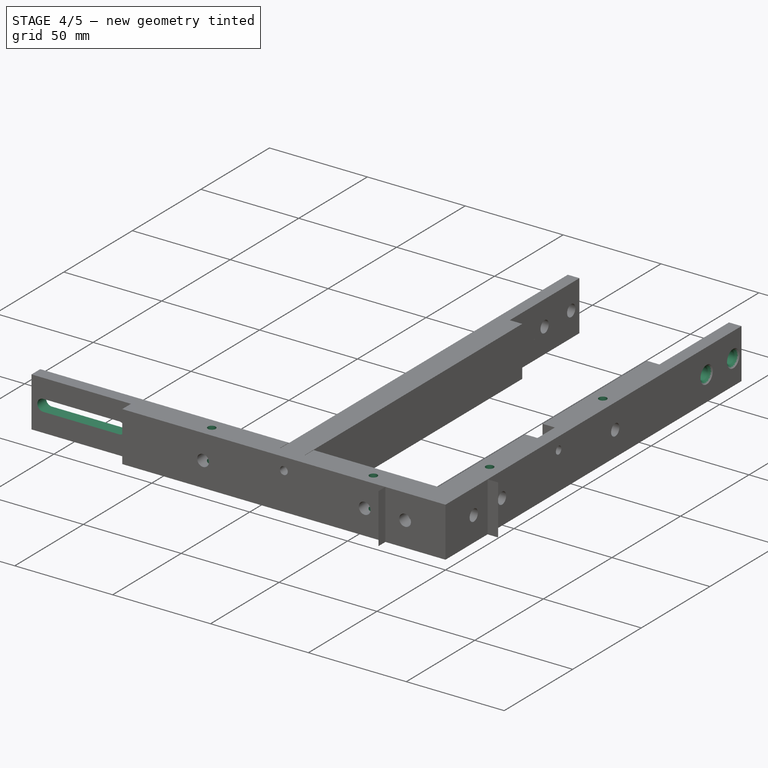
[diagram: stage 4 of 5 — iso view after this stage's code; geometry added in this stage tinted green]
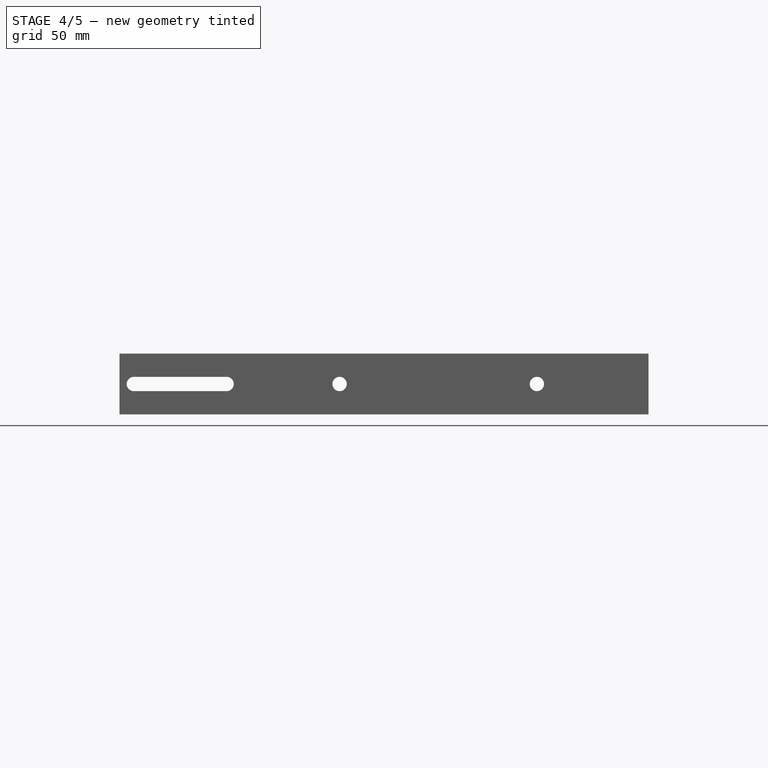
[diagram: stage 4 of 5 — front view after this stage's code; geometry added in this stage tinted green]
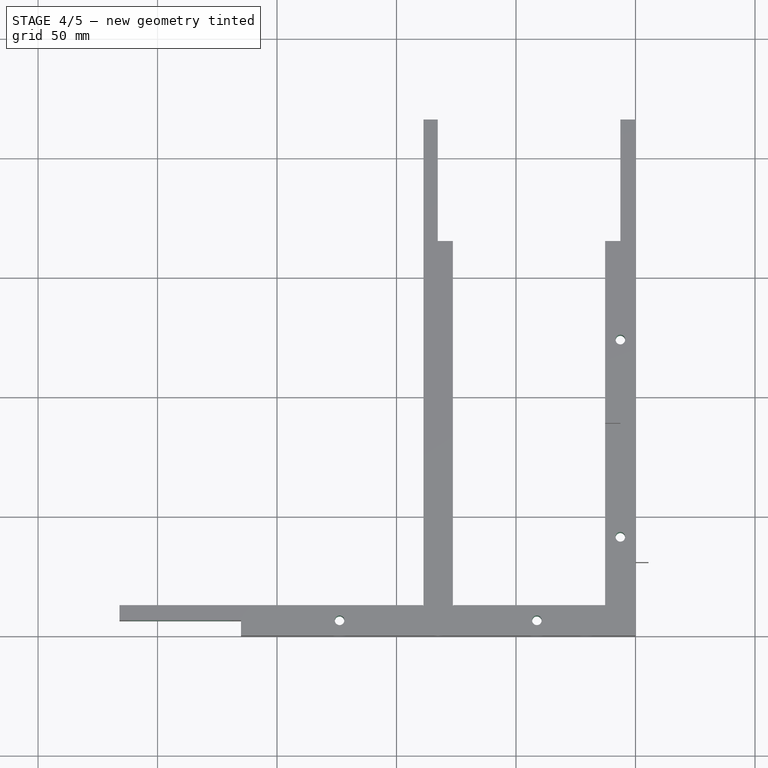
[diagram: stage 4 of 5 — top view after this stage's code; geometry added in this stage tinted green]
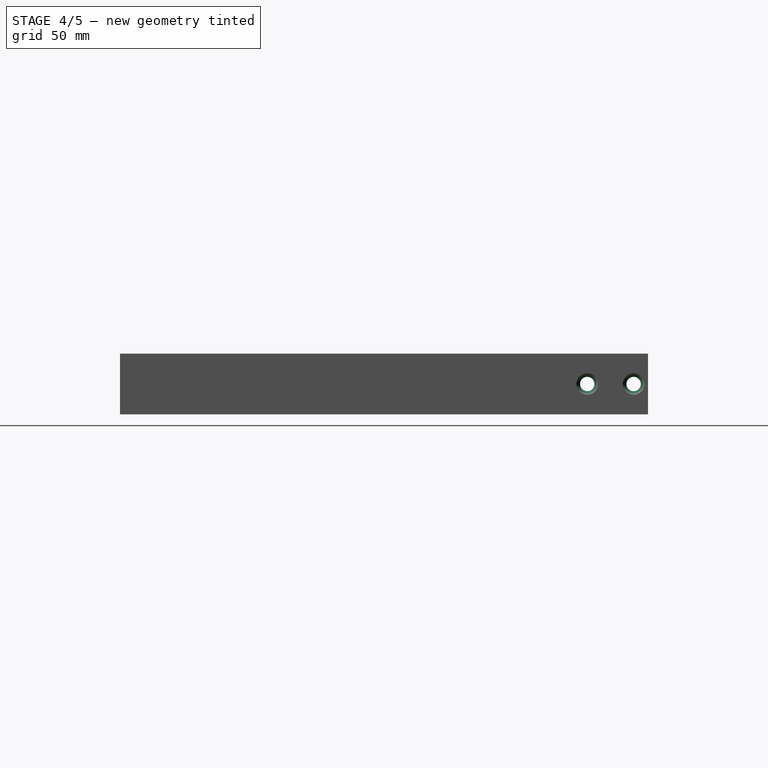
[diagram: stage 4 of 5 — right view after this stage's code; geometry added in this stage tinted green]
FEATURE [Sketcher::SketchObject] Sketch005
  FullyConstrained = true
  MapMode = 5
  Placement = pos=(0,6.35,0) rot=(1,0,0;1.5708rad)
  Support = -> [Pocket003]
  expr: Constraints[11] = <<p>>.height / 2
  expr: Constraints[12] = <<p>>.overlap / 2 - <<p>>.hole_d * 2
  expr: Constraints[13] = <<p>>.batt_length / 2 + <<p>>.overlap / 2 - <<p>>.hole_d
  expr: Constraints[6] = <<p>>.hole_d
  sketch-geometry (4):
    g0: LineSegment StartX=-209.9 StartY=15.7 StartZ=0 EndX=-171.1 EndY=15.7 EndZ=0
    g1: LineSegment StartX=-171.1 StartY=9.7 StartZ=0 EndX=-209.9 EndY=9.7 EndZ=0
    g2: ArcOfCircle CenterX=-209.9 CenterY=12.7 CenterZ=0 NormalX=0 NormalY=0 NormalZ=1 AngleXU=0 Radius=3 StartAngle=1.5708 EndAngle=4.71239
    g3: ArcOfCircle CenterX=-171.1 CenterY=12.7 CenterZ=0 NormalX=0 NormalY=0 NormalZ=1 AngleXU=0 Radius=3 StartAngle=4.71239 EndAngle=7.85398
  constraints (14):
    c: Horizontal(g0)
    c: Horizontal(g1)
    c: Coincident(g2,g0)
    c: Coincident(g2,g1)
    c: Coincident(g3,g0)
    c: DistanceX(g0,g1) = 0
    c: Diameter(g3) = 6
    c: DistanceX(g0,g3) = 0
    c: DistanceX(g0,g2) = 0
    c: DistanceX(g1,g2) = 0
    c: Coincident(g1,g3)
    c: DistanceY(g-1,g3) = 12.7
    c: DistanceX(g2,g3) = 38.8
    c: DistanceX(g2,g-1) = 209.9
FEATURE [PartDesign::Pocket] Pocket004  label="Long_Pocket"
  BaseFeature = -> Pocket003
  Direction = (0,1,-2e-16)
  Length = 5
  Length2 = 5
  Profile = -> Sketch005
  ReferenceAxis = -> Sketch005 [N_Axis]
  Type = 1
FEATURE [Sketcher::SketchObject] Sketch006
  FullyConstrained = true
  MapMode = 5
  Placement = pos=(-6.35,0,0) rot=(0.57735,-0.57735,-0.57735;2.0944rad)
  Support = -> [Pocket003]
  expr: Constraints[1] = <<p>>.hole_d
  expr: Constraints[3] = <<p>>.height / 2
  expr: Constraints[4] = (<<p>>.overlap / 2 - <<p>>.hole_d * 2) / 2
  expr: Constraints[5] = <<p>>.batt_length / 2 + <<p>>.overlap / 2 - <<p>>.hole_d
  sketch-geometry (2):
    g0: Circle CenterX=-209.9 CenterY=12.7 CenterZ=0 NormalX=0 NormalY=0 NormalZ=1 AngleXU=0 Radius=3
    g1: Circle CenterX=-190.5 CenterY=12.7 CenterZ=0 NormalX=0 NormalY=0 NormalZ=1 AngleXU=0 Radius=3
  constraints (6):
    c: Equal(g0,g1)
    c: Diameter(g0) = 6
    c: DistanceY(g0,g1) = 0
    c: DistanceY(g-1,g1) = 12.7
    c: DistanceX(g0,g1) = 19.4
    c: DistanceX(g0,g-1) = 209.9
FEATURE [PartDesign::Pocket] Pocket005  label="Short_Pocket"
  BaseFeature = -> Pocket004
  Direction = (1,0,0)
  Length = 5
  Length2 = 5
  Profile = -> Sketch006
  ReferenceAxis = -> Sketch006 [N_Axis]
  Type = 1
FEATURE [PartDesign::Chamfer] Chamfer  label="Short_Pocket_Chamfer"
  Angle = 45
  Base = -> Pocket005 [Edge21,Edge22]
  BaseFeature = -> Pocket005
  ChamferType = 0
  FlipDirection = false
  Size = 1.5
  Size2 = 1
  SupportTransform = false
  UseAllEdges = false
FEATURE [PartDesign::Chamfer] Chamfer001  label="Inside_Holes_Chamfer"
  Angle = 45
  Base = -> Chamfer [Edge70,Edge71,Edge49,Edge47]
  BaseFeature = -> Chamfer
  ChamferType = 0
  FlipDirection = false
  Size = 1.5
  Size2 = 1
  SupportTransform = false
  UseAllEdges = false
FEATURE [Sketcher::SketchObject] Sketch007
  FullyConstrained = true
  MapMode = 5
  Placement = pos=(0,0,25.4) rot=(0,0,1;0rad)
  Support = -> [Chamfer001]
  expr: Constraints[10] = <<p>>.batt_length / 4
  expr: Constraints[11] = <<p>>.batt_length / 2 / 4
  expr: Constraints[6] = <<p>>.thickness / 2
  expr: Constraints[7] = <<p>>.thickness / 2
  expr: Constraints[8] = <<p>>.batt_length / 4
  expr: Constraints[9] = <<p>>.batt_length / 2 / 4
  sketch-geometry (4):
    g0: Circle CenterX=-123.825 CenterY=6.35 CenterZ=0 NormalX=0 NormalY=0 NormalZ=1 AngleXU=0 Radius=2
    g1: Circle CenterX=-41.275 CenterY=6.35 CenterZ=0 NormalX=0 NormalY=0 NormalZ=1 AngleXU=0 Radius=2
    g2: Circle CenterX=-6.35 CenterY=41.275 CenterZ=0 NormalX=0 NormalY=0 NormalZ=1 AngleXU=0 Radius=2
    g3: Circle CenterX=-6.35 CenterY=123.825 CenterZ=0 NormalX=0 NormalY=0 NormalZ=1 AngleXU=0 Radius=2
  constraints (12):
    c: Equal(g2,g3)
    c: Equal(g2,g0)
    c: Equal(g2,g1)
    c: Diameter(g2) = 4
    c: DistanceX(g3,g2) = 0
    c: DistanceY(g1,g0) = 0
    c: DistanceY(g-1,g1) = 6.35
    c: DistanceX(g2,g-1) = 6.35
    c: DistanceX(g0,g1) = 82.55
    c: DistanceX(g1,g-1) = 41.275
    c: DistanceY(g2,g3) = 82.55
    c: DistanceY(g-1,g2) = 41.275
FEATURE [PartDesign::Pocket] Pocket006  label="Top_Holes"
  BaseFeature = -> Chamfer001
  Direction = (0,0,-1)
  Length = 5
  Length2 = 5
  Profile = -> Sketch007
  ReferenceAxis = -> Sketch007 [N_Axis]
  Type = 1
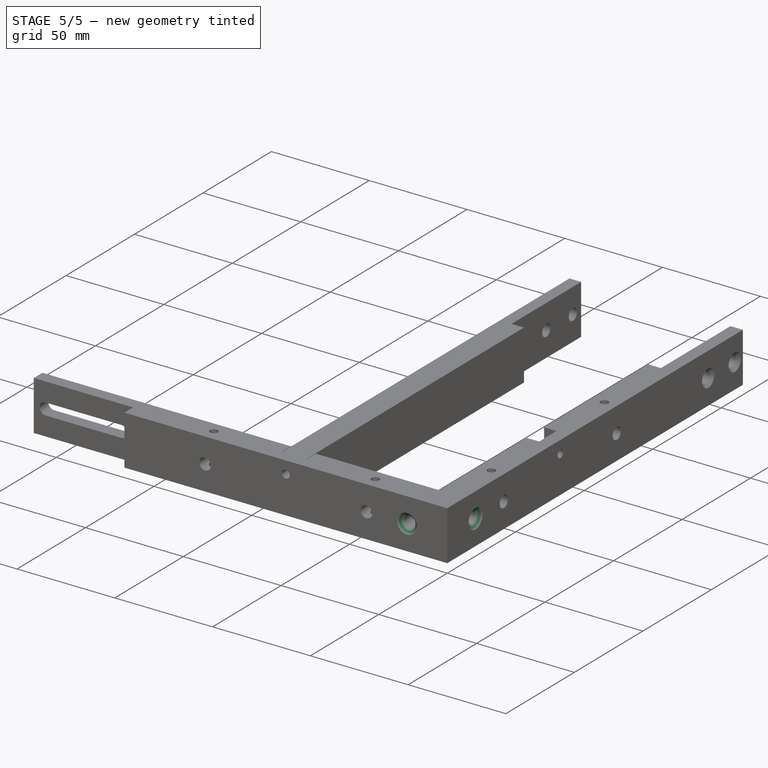
[diagram: stage 5 of 5 — iso view after this stage's code; geometry added in this stage tinted green]
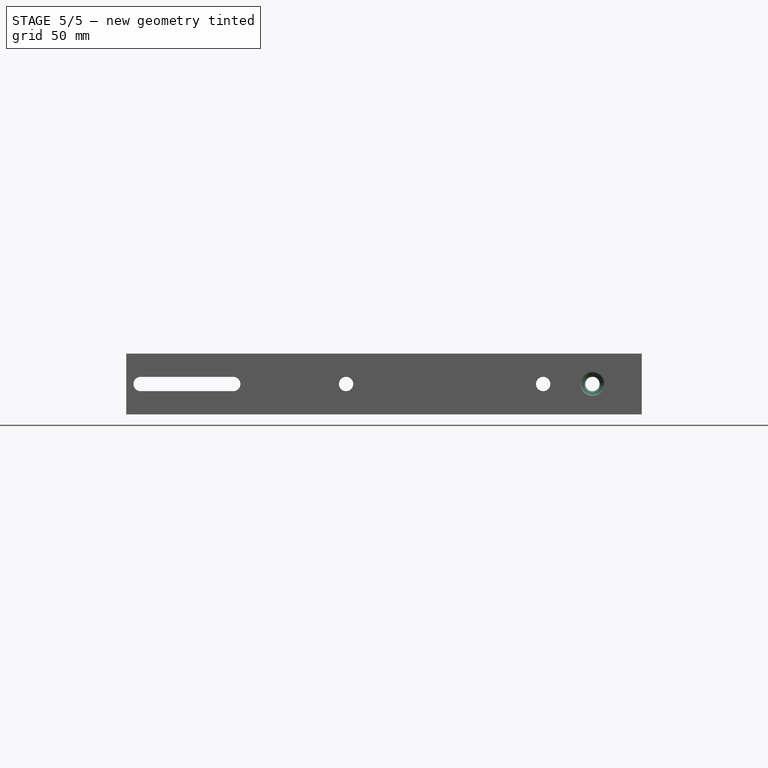
[diagram: stage 5 of 5 — front view after this stage's code; geometry added in this stage tinted green]
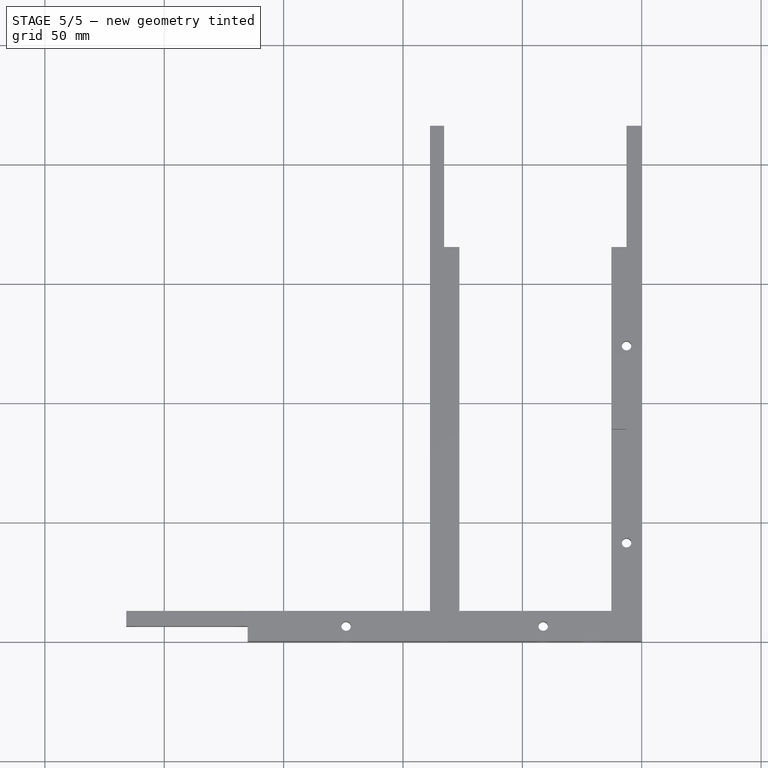
[diagram: stage 5 of 5 — top view after this stage's code; geometry added in this stage tinted green]
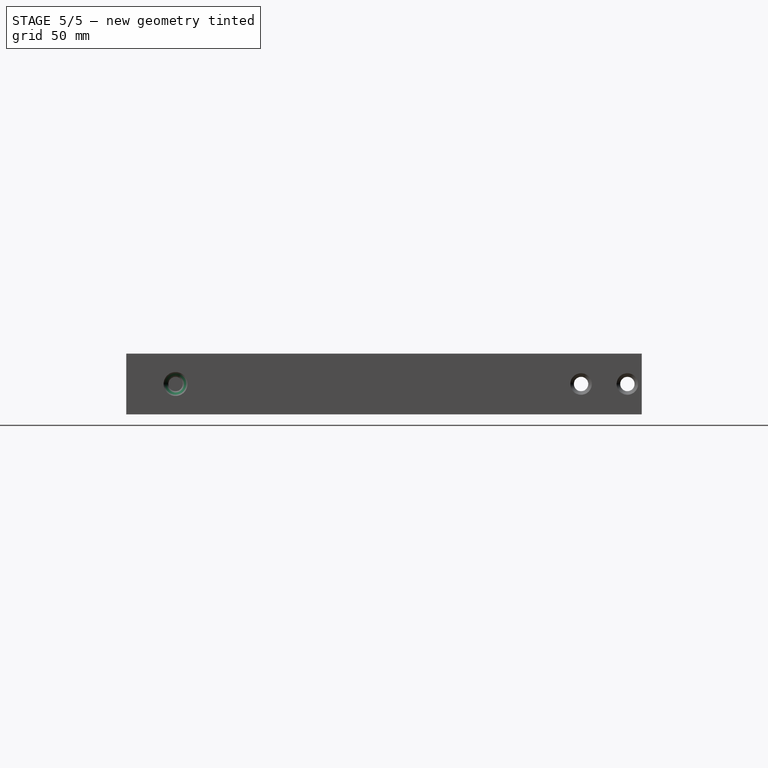
[diagram: stage 5 of 5 — right view after this stage's code; geometry added in this stage tinted green]
FEATURE [PartDesign::Chamfer] Chamfer002  label="Combine_Split_Chamfer"
  Angle = 45
  Base = -> Pocket006 [Edge65,Edge15]
  BaseFeature = -> Pocket006
  ChamferType = 0
  FlipDirection = false
  Size = 2
  Size2 = 1
  SupportTransform = false
  UseAllEdges = false
FEATURE [PartDesign::Body] Body001  label="Split_Bracket"
  Group = -> [Sketch008,Pad001]
  Origin = -> Origin002
  Tip = -> Pad001
FEATURE [App::Part] Part  label="Shelf_Bracket_Part"
  Group = -> [Body,Body001]
  Origin = -> Origin
FEATURE [Part::FeaturePython] Slice  # WARN: FeaturePython — macro-defined, semantics opaque (R4)
  Base = -> Body
  Mode = 1
  Tolerance = 0
  Tools = -> [Body001]
FEATURE [Part::FeaturePython] Slice_child0  label="Slice.0"  # WARN: FeaturePython — macro-defined, semantics opaque (R4)
  Base = -> Slice
  FilterType = 1
  Invert = false
  OverrideMaxVal = 0
  WindowFrom = 80
  WindowTo = 100
  items = 0
FEATURE [Part::FeaturePython] Slice_child1  label="Slice.1"  # WARN: FeaturePython — macro-defined, semantics opaque (R4)
  Base = -> Slice
  FilterType = 1
  Invert = false
  OverrideMaxVal = 0
  WindowFrom = 80
  WindowTo = 100
  items = 1
FEATURE [Part::FeaturePython] Slice_child2  label="Slice.2"  # WARN: FeaturePython — macro-defined, semantics opaque (R4)
  Base = -> Slice
  FilterType = 1
  Invert = false
  OverrideMaxVal = 0
  WindowFrom = 80
  WindowTo = 100
  items = 2
FEATURE [Part::FeaturePython] Slice_child3  label="Slice.3"  # WARN: FeaturePython — macro-defined, semantics opaque (R4)
  Base = -> Slice
  FilterType = 1
  Invert = false
  OverrideMaxVal = 0
  WindowFrom = 80
  WindowTo = 100
  items = 3
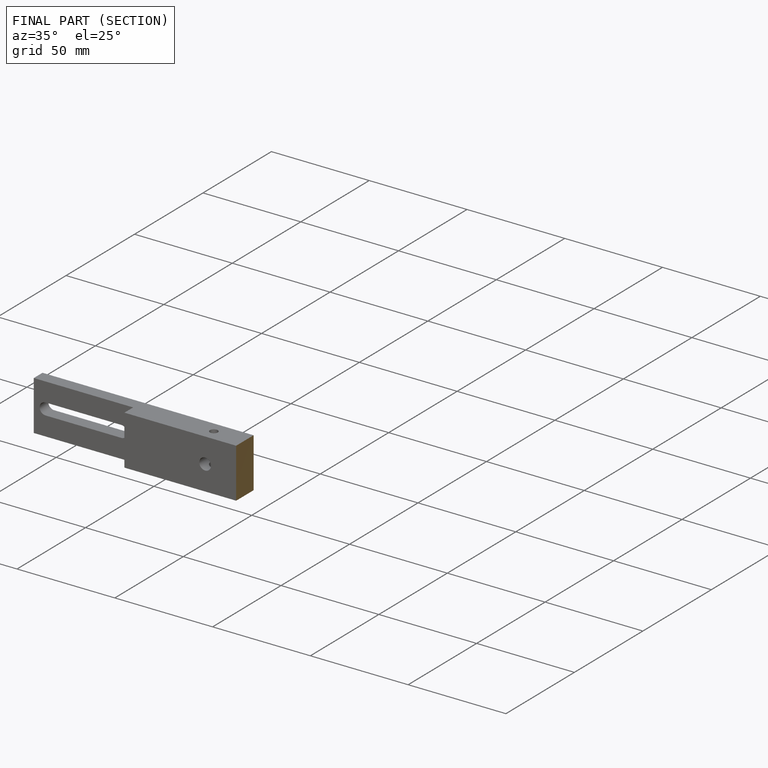
[diagram: finished part — half-section view (interior)]
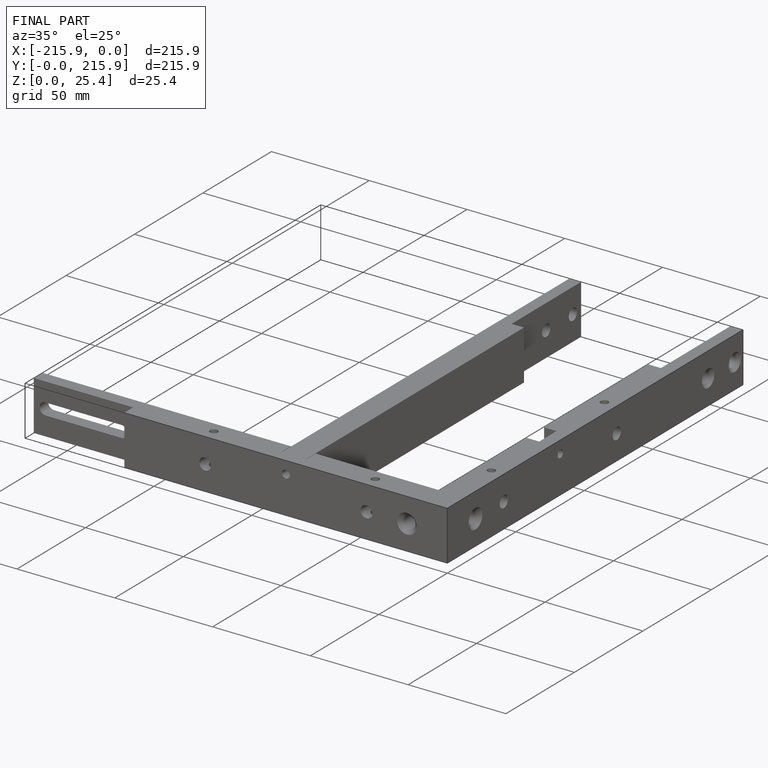
[diagram: finished part — iso view with bounding-box wireframe]
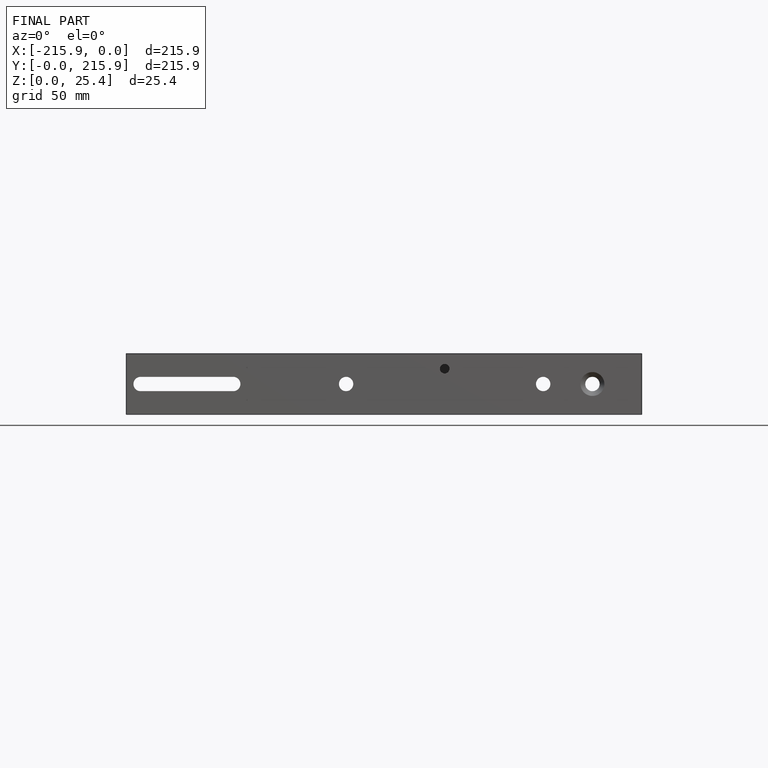
[diagram: finished part — front view with bounding-box wireframe]
